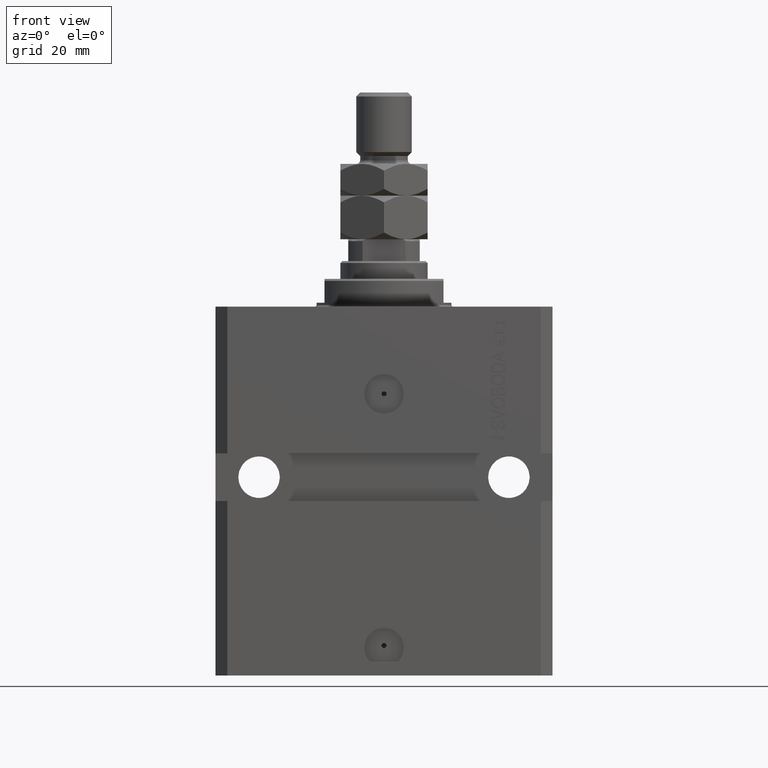
[diagram: clean part render]
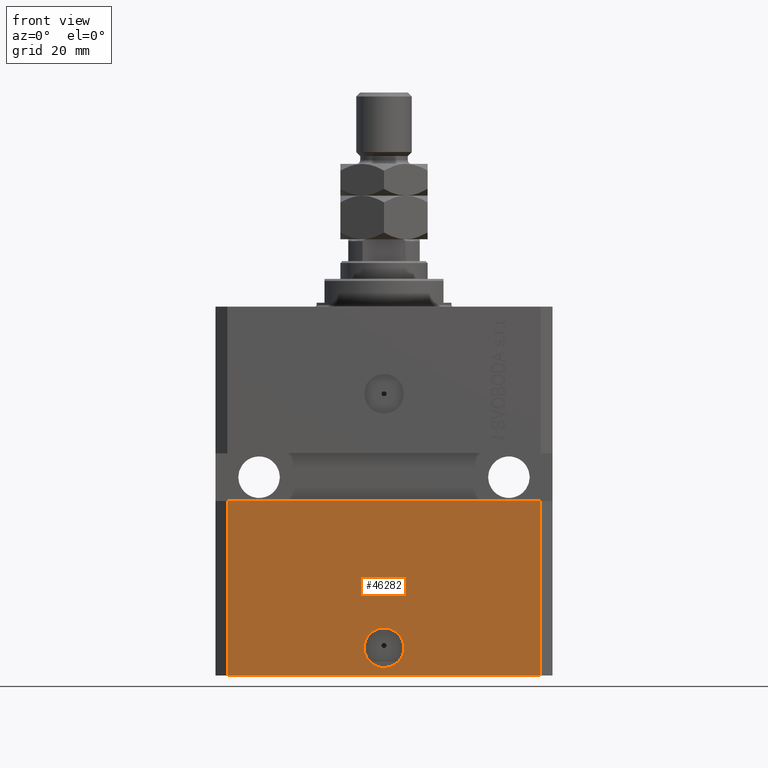
[diagram: same view with one face highlighted and labeled with its STEP entity id]
A machine part, front view. The second image highlights one B-rep face of the part: STEP entity #46282.
In plain terms, the highlighted planar face has unit normal (0, -1, 0).
Its self-contained STEP definition (entity closure, byte-faithful):
#1166 = EDGE_CURVE ( 'NONE', #13455, #26657, #34463, .T. ) ;
#1189 = DIRECTION ( 'NONE',  ( 0.000000000000000000, -0.000000000000000000, -1.000000000000000000 ) ) ;
#1832 = EDGE_CURVE ( 'NONE', #37474, #15512, #26392, .T. ) ;
#3893 = VECTOR ( 'NONE', #11605, 1000.000000000000000 ) ;
#3946 = CARTESIAN_POINT ( 'NONE',  ( -39.50000000000000711, -31.50000000000000000, -93.00000000000000000 ) ) ;
#4411 = DIRECTION ( 'NONE',  ( 1.000000000000000000, 0.000000000000000000, 0.000000000000000000 ) ) ;
#4606 = ORIENTED_EDGE ( 'NONE', *, *, #20113, .T. ) ;
#5463 = DIRECTION ( 'NONE',  ( 0.000000000000000000, -1.000000000000000000, 0.000000000000000000 ) ) ;
#6106 = VECTOR ( 'NONE', #23052, 1000.000000000000000 ) ;
#9292 = ORIENTED_EDGE ( 'NONE', *, *, #37482, .F. ) ;
#10908 = ORIENTED_EDGE ( 'NONE', *, *, #20524, .T. ) ;
#11605 = DIRECTION ( 'NONE',  ( 0.000000000000000000, 0.000000000000000000, 1.000000000000000000 ) ) ;
#13455 = VERTEX_POINT ( 'NONE', #20800 ) ;
#13833 = LINE ( 'NONE', #37190, #18111 ) ;
#15512 = VERTEX_POINT ( 'NONE', #46986 ) ;
#17812 = DIRECTION ( 'NONE',  ( 1.176083712526788232E-16, -1.000000000000000000, 0.000000000000000000 ) ) ;
#18111 = VECTOR ( 'NONE', #36943, 1000.000000000000000 ) ;
#19179 = CIRCLE ( 'NONE', #36003, 5.000000000000006217 ) ;
#19257 = CARTESIAN_POINT ( 'NONE',  ( 0.000000000000000000, -31.50000000000000000, -86.00000000000000000 ) ) ;
#19954 = ORIENTED_EDGE ( 'NONE', *, *, #1166, .F. ) ;
#20113 = EDGE_CURVE ( 'NONE', #20352, #27862, #13833, .T. ) ;
#20298 = FACE_OUTER_BOUND ( 'NONE', #31110, .T. ) ;
#20352 = VERTEX_POINT ( 'NONE', #42931 ) ;
#20524 = EDGE_CURVE ( 'NONE', #13455, #20352, #27076, .T. ) ;
#20800 = CARTESIAN_POINT ( 'NONE',  ( -39.50000000000000711, -31.50000000000000000, -93.00000000000000000 ) ) ;
#21034 = CARTESIAN_POINT ( 'NONE',  ( -39.50000000000000711, -31.50000000000000000, -93.00000000000000000 ) ) ;
#21482 = CARTESIAN_POINT ( 'NONE',  ( -39.50000000000000000, -31.50000000000000711, -48.99999999999999289 ) ) ;
#22318 = DIRECTION ( 'NONE',  ( 1.000000000000000000, 0.000000000000000000, 0.000000000000000000 ) ) ;
#23052 = DIRECTION ( 'NONE',  ( 1.000000000000000000, 0.000000000000000000, 0.000000000000000000 ) ) ;
#23510 = DIRECTION ( 'NONE',  ( 1.176083712526788232E-16, -1.000000000000000000, 0.000000000000000000 ) ) ;
#23905 = CARTESIAN_POINT ( 'NONE',  ( -39.50000000000000711, -31.50000000000000000, -93.00000000000000000 ) ) ;
#26070 = ORIENTED_EDGE ( 'NONE', *, *, #46562, .F. ) ;
#26215 = VECTOR ( 'NONE', #48549, 1000.000000000000000 ) ;
#26392 = CIRCLE ( 'NONE', #27991, 5.000000000000006217 ) ;
#26657 = VERTEX_POINT ( 'NONE', #21482 ) ;
#27076 = LINE ( 'NONE', #3946, #6106 ) ;
#27862 = VERTEX_POINT ( 'NONE', #34449 ) ;
#27991 = AXIS2_PLACEMENT_3D ( 'NONE', #40655, #17812, #22318 ) ;
#30472 = EDGE_LOOP ( 'NONE', ( #26070, #45741 ) ) ;
#31110 = EDGE_LOOP ( 'NONE', ( #9292, #19954, #10908, #4606 ) ) ;
#32074 = PLANE ( 'NONE',  #44861 ) ;
#33197 = LINE ( 'NONE', #40984, #26215 ) ;
#34449 = CARTESIAN_POINT ( 'NONE',  ( 39.50000000000001421, -31.49999999999999289, -48.99999999999999289 ) ) ;
#34463 = LINE ( 'NONE', #23905, #3893 ) ;
#36003 = AXIS2_PLACEMENT_3D ( 'NONE', #19257, #23510, #4411 ) ;
#36943 = DIRECTION ( 'NONE',  ( 0.000000000000000000, 0.000000000000000000, 1.000000000000000000 ) ) ;
#37190 = CARTESIAN_POINT ( 'NONE',  ( 39.50000000000000711, -31.50000000000000000, -93.00000000000000000 ) ) ;
#37474 = VERTEX_POINT ( 'NONE', #45270 ) ;
#37482 = EDGE_CURVE ( 'NONE', #26657, #27862, #33197, .T. ) ;
#40655 = CARTESIAN_POINT ( 'NONE',  ( 0.000000000000000000, -31.50000000000000000, -86.00000000000000000 ) ) ;
#40984 = CARTESIAN_POINT ( 'NONE',  ( -42.50000000000000000, -31.50000000000000711, -48.99999999999999289 ) ) ;
#42931 = CARTESIAN_POINT ( 'NONE',  ( 39.50000000000000711, -31.50000000000000000, -93.00000000000000000 ) ) ;
#44861 = AXIS2_PLACEMENT_3D ( 'NONE', #21034, #5463, #1189 ) ;
#45270 = CARTESIAN_POINT ( 'NONE',  ( -5.000000000000006217, -31.50000000000000000, -86.00000000000000000 ) ) ;
#45741 = ORIENTED_EDGE ( 'NONE', *, *, #1832, .F. ) ;
#46282 = ADVANCED_FACE ( 'NONE', ( #46944, #20298 ), #32074, .T. ) ;
#46562 = EDGE_CURVE ( 'NONE', #15512, #37474, #19179, .T. ) ;
#46944 = FACE_BOUND ( 'NONE', #30472, .T. ) ;
#46986 = CARTESIAN_POINT ( 'NONE',  ( 5.000000000000006217, -31.50000000000000000, -86.00000000000000000 ) ) ;
#48549 = DIRECTION ( 'NONE',  ( 1.000000000000000000, 1.632680918566406300E-16, 0.000000000000000000 ) ) ;